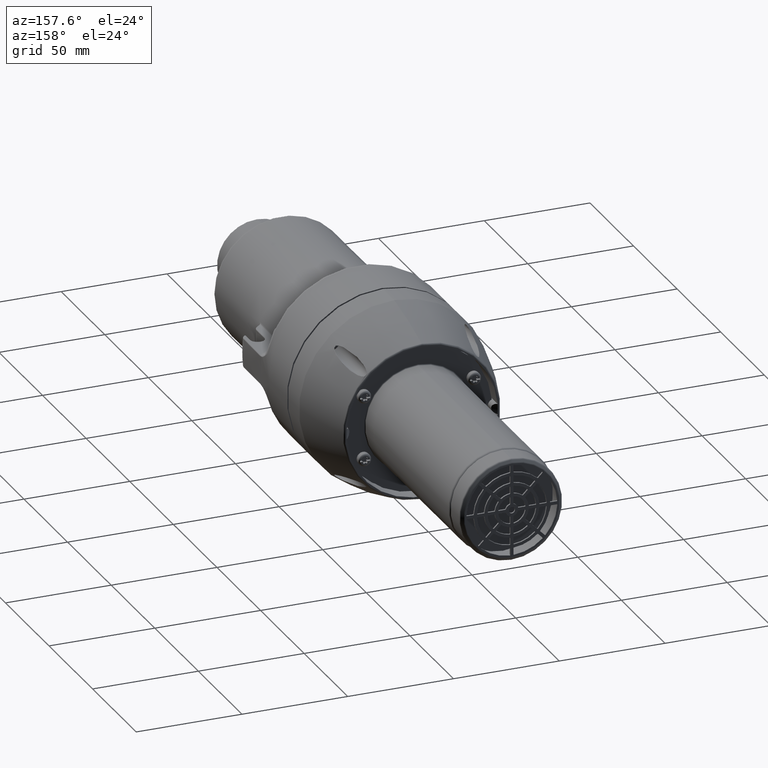
[diagram: clean part render]
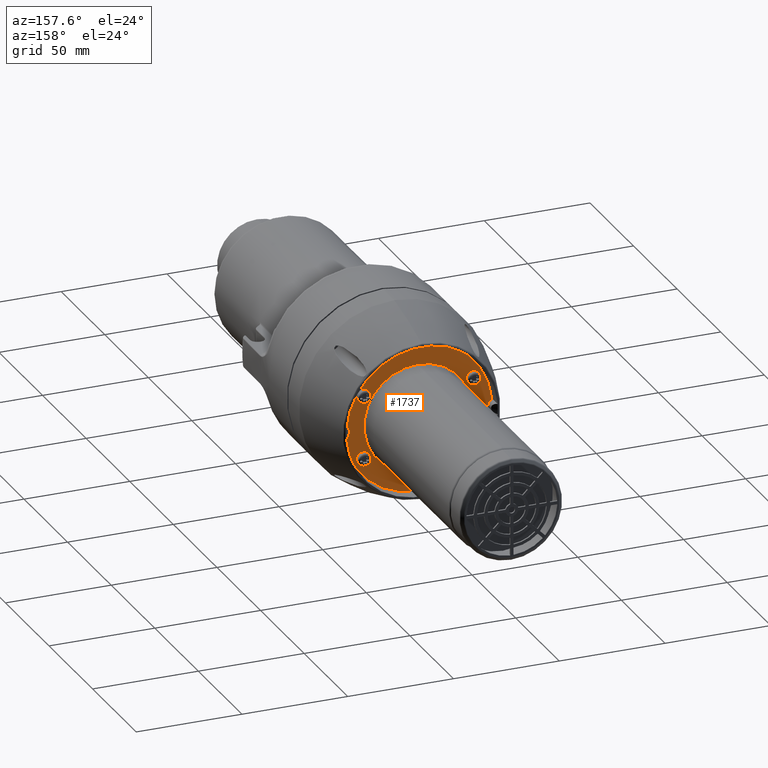
[diagram: same view with one face highlighted and labeled with its STEP entity id]
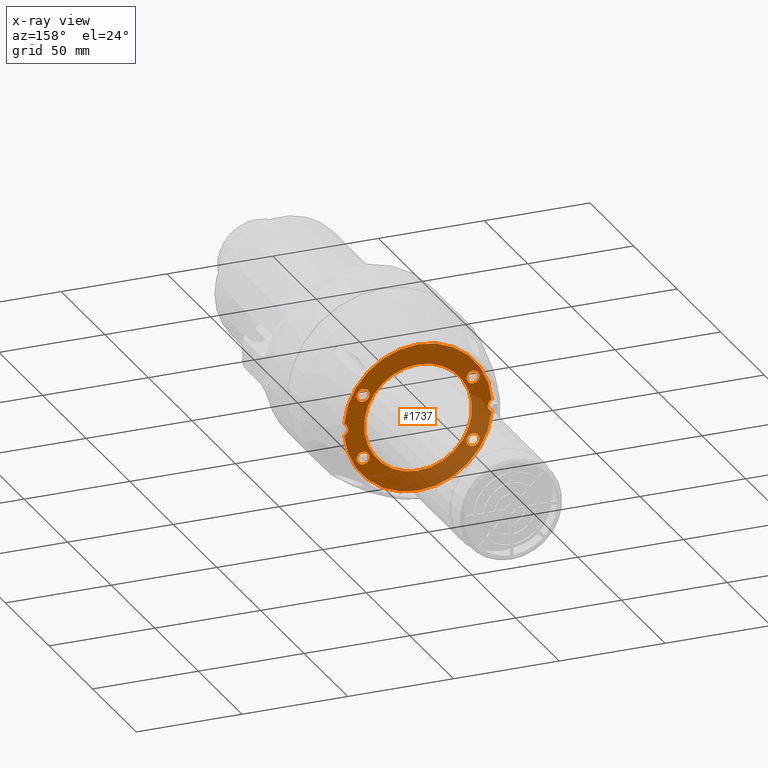
[diagram: x-ray of the same camera — body ghosted, the highlighted face saturated]
A machine part, auxiliary view. The second image highlights one B-rep face of the part: STEP entity #1737.
The next image is the same camera in x-ray: the body ghosted, the highlighted face saturated — about 31% of this face is hidden behind the body in this view.
In plain terms, the highlighted planar face has unit normal (-0, 1, -0).
Its self-contained STEP definition (entity closure, byte-faithful):
#1737 = ADVANCED_FACE( '', ( #3997, #3998, #3999, #4000, #4001, #4002 ), #4003, .T. );
#3997 = FACE_OUTER_BOUND( '', #8643, .T. );
#3998 = FACE_BOUND( '', #8644, .T. );
#3999 = FACE_BOUND( '', #8645, .T. );
#4000 = FACE_BOUND( '', #8646, .T. );
#4001 = FACE_BOUND( '', #8647, .T. );
#4002 = FACE_BOUND( '', #8648, .T. );
#4003 = PLANE( '', #8649 );
#8643 = EDGE_LOOP( '', ( #16785, #16786, #16787, #16788 ) );
#8644 = EDGE_LOOP( '', ( #16789 ) );
#8645 = EDGE_LOOP( '', ( #16790 ) );
#8646 = EDGE_LOOP( '', ( #16791 ) );
#8647 = EDGE_LOOP( '', ( #16792 ) );
#8648 = EDGE_LOOP( '', ( #16793 ) );
#8649 = AXIS2_PLACEMENT_3D( '', #16794, #16795, #16796 );
#16785 = ORIENTED_EDGE( '', *, *, #21492, .F. );
#16786 = ORIENTED_EDGE( '', *, *, #23002, .T. );
#16787 = ORIENTED_EDGE( '', *, *, #23347, .F. );
#16788 = ORIENTED_EDGE( '', *, *, #23348, .T. );
#16789 = ORIENTED_EDGE( '', *, *, #22370, .F. );
#16790 = ORIENTED_EDGE( '', *, *, #23349, .F. );
#16791 = ORIENTED_EDGE( '', *, *, #22744, .F. );
#16792 = ORIENTED_EDGE( '', *, *, #23350, .F. );
#16793 = ORIENTED_EDGE( '', *, *, #22796, .F. );
#16794 = CARTESIAN_POINT( '', ( -3.86619472099564E-011, 37.9999999999964, 34.9999999999556 ) );
#16795 = DIRECTION( '', ( -9.11655773063631E-017, 1.00000000000000, -4.56102135419189E-017 ) );
#16796 = DIRECTION( '', ( -1.00000000000000, -9.11655773064288E-017, -1.43988510351023E-012 ) );
#21492 = EDGE_CURVE( '', #25200, #25195, #25202, .T. );
#22370 = EDGE_CURVE( '', #26662, #26662, #26663, .T. );
#22744 = EDGE_CURVE( '', #27242, #27242, #27243, .T. );
#22796 = EDGE_CURVE( '', #27316, #27316, #27317, .T. );
#23002 = EDGE_CURVE( '', #25200, #27631, #27633, .T. );
#23347 = EDGE_CURVE( '', #28157, #27631, #28158, .T. );
#23348 = EDGE_CURVE( '', #28157, #25195, #28159, .T. );
#23349 = EDGE_CURVE( '', #28160, #28160, #28161, .T. );
#23350 = EDGE_CURVE( '', #28162, #28162, #28163, .T. );
#25195 = VERTEX_POINT( '', #30856 );
#25200 = VERTEX_POINT( '', #30862 );
#25202 = CIRCLE( '', #30865, 3.00000000000070 );
#26662 = VERTEX_POINT( '', #33553 );
#26663 = CIRCLE( '', #33554, 25.5000000000002 );
#27242 = VERTEX_POINT( '', #34603 );
#27243 = CIRCLE( '', #34604, 3.05000000000050 );
#27316 = VERTEX_POINT( '', #34698 );
#27317 = CIRCLE( '', #34699, 3.05000000000050 );
#27631 = VERTEX_POINT( '', #35390 );
#27633 = CIRCLE( '', #35393, 35.0000000000124 );
#28157 = VERTEX_POINT( '', #36184 );
#28158 = CIRCLE( '', #36185, 3.00000000000070 );
#28159 = CIRCLE( '', #36186, 35.0000000000124 );
#28160 = VERTEX_POINT( '', #36187 );
#28161 = CIRCLE( '', #36188, 3.05000000000050 );
#28162 = VERTEX_POINT( '', #36189 );
#28163 = CIRCLE( '', #36190, 3.05000000000050 );
#30856 = CARTESIAN_POINT( '', ( -34.8888888889327, 37.9999999999964, -2.78665248981351 ) );
#30862 = CARTESIAN_POINT( '', ( -34.8888888889153, 37.9999999999964, 2.78665248973153 ) );
#30865 = AXIS2_PLACEMENT_3D( '', #39409, #39410, #39411 );
#33553 = CARTESIAN_POINT( '', ( -3.86610696414763E-011, 37.9999999999964, 25.4999999999686 ) );
#33554 = AXIS2_PLACEMENT_3D( '', #40516, #40517, #40518 );
#34603 = CARTESIAN_POINT( '', ( 25.9807621134825, 37.9999999999964, 11.9499999999582 ) );
#34604 = AXIS2_PLACEMENT_3D( '', #40965, #40966, #40967 );
#34698 = CARTESIAN_POINT( '', ( 25.9807621135003, 37.9999999999964, -18.0500000000412 ) );
#34699 = AXIS2_PLACEMENT_3D( '', #41037, #41038, #41039 );
#35390 = CARTESIAN_POINT( '', ( 34.8888888888543, 37.9999999999964, 2.78665248973295 ) );
#35393 = AXIS2_PLACEMENT_3D( '', #41252, #41253, #41254 );
#36184 = CARTESIAN_POINT( '', ( 34.8888888888623, 37.9999999999964, -2.78665248981464 ) );
#36185 = AXIS2_PLACEMENT_3D( '', #41811, #41812, #41813 );
#36186 = AXIS2_PLACEMENT_3D( '', #41814, #41815, #41816 );
#36187 = CARTESIAN_POINT( '', ( -25.9807621135609, 37.9999999999964, -18.0500000000423 ) );
#36188 = AXIS2_PLACEMENT_3D( '', #41817, #41818, #41819 );
#36189 = CARTESIAN_POINT( '', ( -25.9807621135787, 37.9999999999964, 11.9499999999596 ) );
#36190 = AXIS2_PLACEMENT_3D( '', #41820, #41821, #41822 );
#39409 = CARTESIAN_POINT( '', ( -36.0000000000349, 37.9999999999964, -4.10872072469941E-011 ) );
#39410 = DIRECTION( '', ( -9.11655773063631E-017, 1.00000000000000, -4.56102135419189E-017 ) );
#39411 = DIRECTION( '', ( 0.370370370371183, 7.61316336739545E-017, 0.928884163257784 ) );
#40516 = CARTESIAN_POINT( '', ( -3.47911963947803E-006, 37.9999999999964, -3.13925029181006E-011 ) );
#40517 = DIRECTION( '', ( -9.11655773063631E-017, 1.00000000000000, -4.56102135419189E-017 ) );
#40518 = DIRECTION( '', ( 1.36434548172877E-007, 4.56102259800528E-017, 0.999999999999991 ) );
#40965 = CARTESIAN_POINT( '', ( 25.9807621134825, 37.9999999999964, 14.9999999999587 ) );
#40966 = DIRECTION( '', ( -9.11655773063631E-017, 1.00000000000000, -4.56102135419189E-017 ) );
#40967 = DIRECTION( '', ( 1.23990782323012E-015, -4.56102135419188E-017, -1.00000000000000 ) );
#41037 = CARTESIAN_POINT( '', ( 25.9807621135003, 37.9999999999964, -15.0000000000406 ) );
#41038 = DIRECTION( '', ( -9.11655773063631E-017, 1.00000000000000, -4.56102135419189E-017 ) );
#41039 = DIRECTION( '', ( -6.09250525769917E-016, -4.56102135419190E-017, -1.00000000000000 ) );
#41252 = CARTESIAN_POINT( '', ( -3.86587141190889E-011, 37.9999999999964, -4.10801467327185E-011 ) );
#41253 = DIRECTION( '', ( -9.11655773063631E-017, 1.00000000000000, -4.56102135419189E-017 ) );
#41254 = DIRECTION( '', ( -0.996825396825399, -8.72447394859267E-017, 0.0796186425649535 ) );
#41811 = CARTESIAN_POINT( '', ( 35.9999999999565, 37.9999999999964, -4.10874952111148E-011 ) );
#41812 = DIRECTION( '', ( -9.11655773063631E-017, 1.00000000000000, -4.56102135419189E-017 ) );
#41813 = DIRECTION( '', ( -0.370370370371183, -7.61316336739545E-017, -0.928884163257784 ) );
#41814 = CARTESIAN_POINT( '', ( -3.86587141190889E-011, 37.9999999999964, -4.10801467327185E-011 ) );
#41815 = DIRECTION( '', ( -9.11655773063631E-017, 1.00000000000000, -4.56102135419189E-017 ) );
#41816 = DIRECTION( '', ( 0.996825396825399, 8.72447394859267E-017, -0.0796186425649535 ) );
#41817 = CARTESIAN_POINT( '', ( -25.9807621135609, 37.9999999999964, -15.0000000000418 ) );
#41818 = DIRECTION( '', ( -9.11655773063631E-017, 1.00000000000000, -4.56102135419189E-017 ) );
#41819 = DIRECTION( '', ( 1.23990782323012E-015, -4.56102135419188E-017, -1.00000000000000 ) );
#41820 = CARTESIAN_POINT( '', ( -25.9807621135787, 37.9999999999964, 14.9999999999601 ) );
#41821 = DIRECTION( '', ( -9.11655773063631E-017, 1.00000000000000, -4.56102135419189E-017 ) );
#41822 = DIRECTION( '', ( 1.23990782323012E-015, -4.56102135419188E-017, -1.00000000000000 ) );